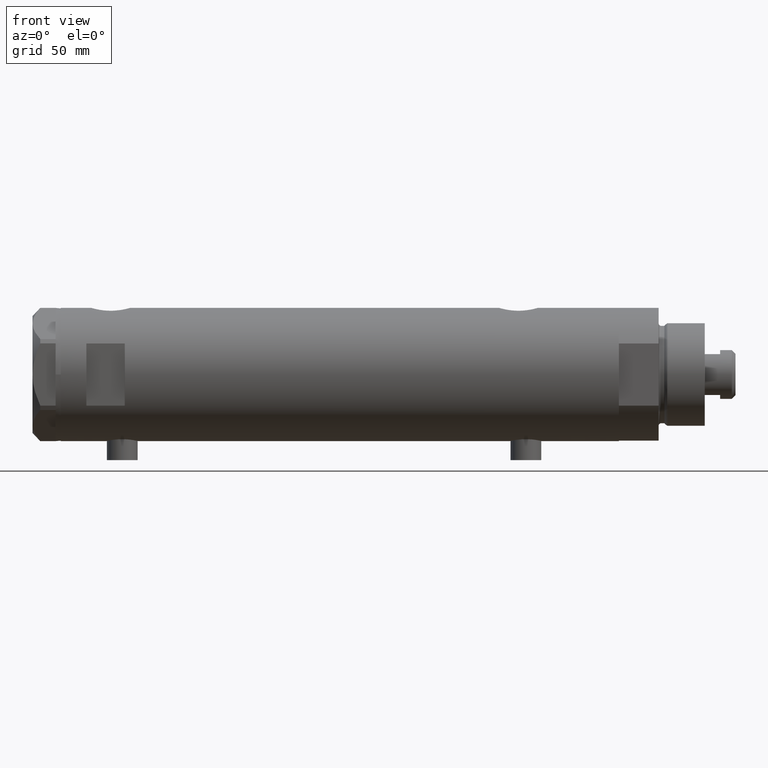
[diagram: clean part render]
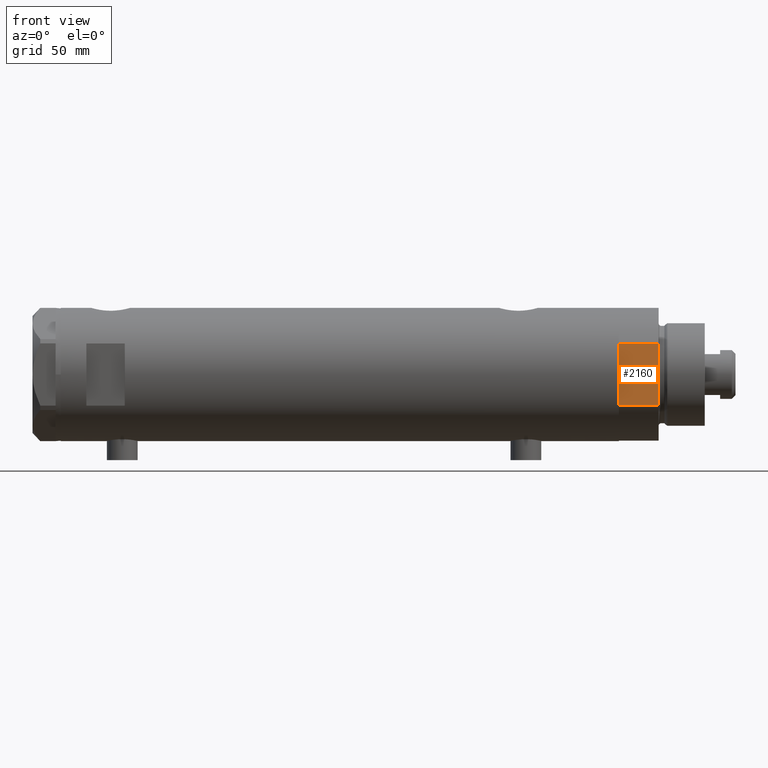
[diagram: same view with one face highlighted and labeled with its STEP entity id]
A machine part, front view. The second image highlights one B-rep face of the part: STEP entity #2160.
In plain terms, the highlighted planar face has unit normal (-0, 1, 0).
Its self-contained STEP definition (entity closure, byte-faithful):
#16 = CARTESIAN_POINT ( 'NONE',  ( 12.12435565298215323, -22.99999999999999645, 0.000000000000000000 ) ) ;
#115 = DIRECTION ( 'NONE',  ( -1.000000000000000000, -0.000000000000000000, -0.000000000000000000 ) ) ;
#264 = EDGE_LOOP ( 'NONE', ( #3383, #4308, #345, #4367 ) ) ;
#345 = ORIENTED_EDGE ( 'NONE', *, *, #2764, .F. ) ;
#348 = VERTEX_POINT ( 'NONE', #3336 ) ;
#429 = DIRECTION ( 'NONE',  ( -0.000000000000000000, -0.000000000000000000, 1.000000000000000000 ) ) ;
#687 = CARTESIAN_POINT ( 'NONE',  ( -12.12435565298215501, -22.99999999999999645, 0.000000000000000000 ) ) ;
#782 = LINE ( 'NONE', #3404, #2631 ) ;
#857 = VERTEX_POINT ( 'NONE', #16 ) ;
#1045 = DIRECTION ( 'NONE',  ( -1.000000000000000000, -0.000000000000000000, -0.000000000000000000 ) ) ;
#1154 = CARTESIAN_POINT ( 'NONE',  ( -12.12435565298215145, -22.99999999999999645, 0.000000000000000000 ) ) ;
#1449 = DIRECTION ( 'NONE',  ( 0.000000000000000000, -0.000000000000000000, 1.000000000000000000 ) ) ;
#1483 = EDGE_CURVE ( 'NONE', #857, #348, #782, .T. ) ;
#1827 = VERTEX_POINT ( 'NONE', #687 ) ;
#1839 = LINE ( 'NONE', #2695, #2113 ) ;
#2029 = LINE ( 'NONE', #3432, #3853 ) ;
#2092 = VERTEX_POINT ( 'NONE', #3638 ) ;
#2113 = VECTOR ( 'NONE', #2420, 1000.000000000000000 ) ;
#2160 = ADVANCED_FACE ( 'NONE', ( #4866 ), #4118, .F. ) ;
#2236 = LINE ( 'NONE', #4469, #2334 ) ;
#2330 = AXIS2_PLACEMENT_3D ( 'NONE', #1154, #3714, #1449 ) ;
#2334 = VECTOR ( 'NONE', #1045, 1000.000000000000000 ) ;
#2420 = DIRECTION ( 'NONE',  ( -0.000000000000000000, -0.000000000000000000, 1.000000000000000000 ) ) ;
#2631 = VECTOR ( 'NONE', #429, 1000.000000000000000 ) ;
#2695 = CARTESIAN_POINT ( 'NONE',  ( -12.12435565298215145, -22.99999999999999645, 0.000000000000000000 ) ) ;
#2764 = EDGE_CURVE ( 'NONE', #857, #1827, #2236, .T. ) ;
#3336 = CARTESIAN_POINT ( 'NONE',  ( 12.12435565298215323, -22.99999999999999645, 15.50000000000000000 ) ) ;
#3383 = ORIENTED_EDGE ( 'NONE', *, *, #3562, .T. ) ;
#3404 = CARTESIAN_POINT ( 'NONE',  ( 12.12435565298215323, -22.99999999999999645, 0.000000000000000000 ) ) ;
#3432 = CARTESIAN_POINT ( 'NONE',  ( -12.12435565298215145, -22.99999999999999645, 15.50000000000000000 ) ) ;
#3562 = EDGE_CURVE ( 'NONE', #348, #2092, #2029, .T. ) ;
#3638 = CARTESIAN_POINT ( 'NONE',  ( -12.12435565298215323, -22.99999999999999645, 15.50000000000000000 ) ) ;
#3714 = DIRECTION ( 'NONE',  ( -0.000000000000000000, 1.000000000000000000, 0.000000000000000000 ) ) ;
#3853 = VECTOR ( 'NONE', #115, 1000.000000000000000 ) ;
#4118 = PLANE ( 'NONE',  #2330 ) ;
#4308 = ORIENTED_EDGE ( 'NONE', *, *, #4332, .F. ) ;
#4332 = EDGE_CURVE ( 'NONE', #1827, #2092, #1839, .T. ) ;
#4367 = ORIENTED_EDGE ( 'NONE', *, *, #1483, .T. ) ;
#4469 = CARTESIAN_POINT ( 'NONE',  ( -12.12435565298215145, -22.99999999999999645, 0.000000000000000000 ) ) ;
#4866 = FACE_OUTER_BOUND ( 'NONE', #264, .T. ) ;